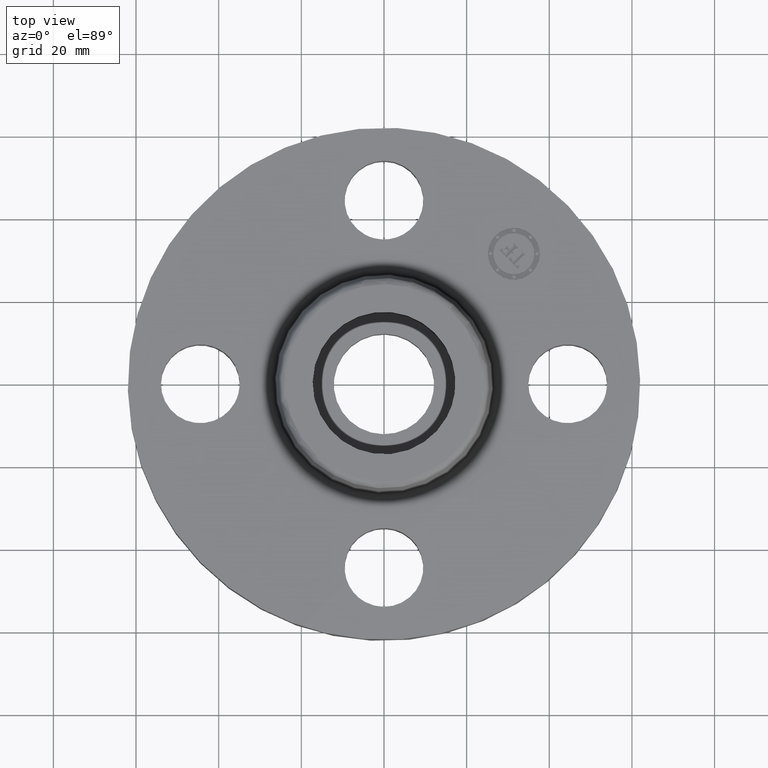
[diagram: clean part render]
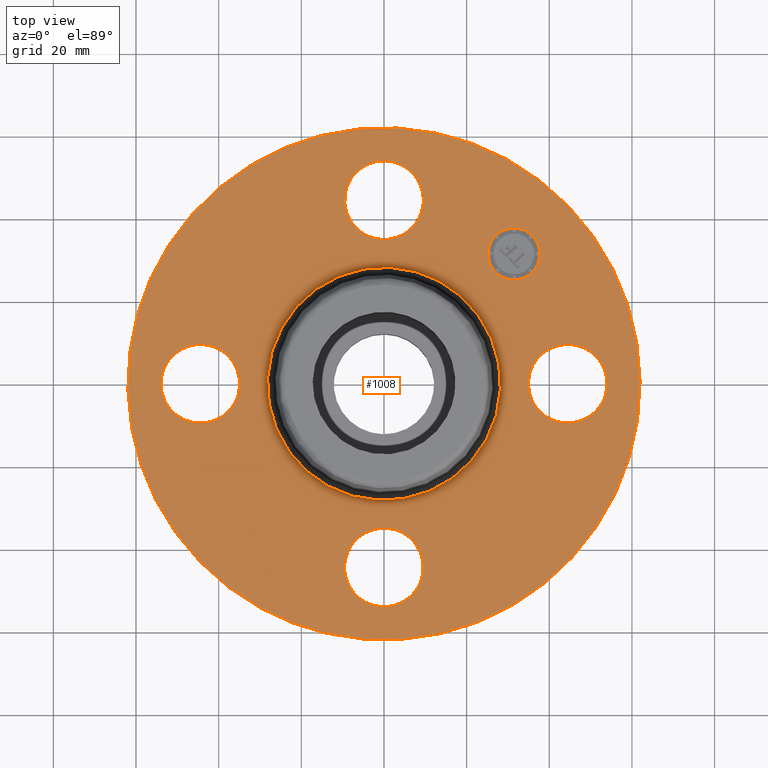
[diagram: same view with one face highlighted and labeled with its STEP entity id]
A machine part, top view. The second image highlights one B-rep face of the part: STEP entity #1008.
In plain terms, the highlighted planar face has unit normal (0, 0, -1).
Its self-contained STEP definition (entity closure, byte-faithful):
#543=AXIS2_PLACEMENT_3D('Circle Axis2P3D',#541,#542,$) ;
#624=AXIS2_PLACEMENT_3D('Circle Axis2P3D',#622,#623,$) ;
#698=AXIS2_PLACEMENT_3D('Circle Axis2P3D',#696,#697,$) ;
#772=AXIS2_PLACEMENT_3D('Circle Axis2P3D',#770,#771,$) ;
#846=AXIS2_PLACEMENT_3D('Circle Axis2P3D',#844,#845,$) ;
#906=AXIS2_PLACEMENT_3D('Circle Axis2P3D',#904,#905,$) ;
#944=AXIS2_PLACEMENT_3D('Circle Axis2P3D',#942,#943,$) ;
#964=AXIS2_PLACEMENT_3D('Plane Axis2P3D',#961,#962,#963) ;
#992=AXIS2_PLACEMENT_3D('Circle Axis2P3D',#990,#991,$) ;
#1001=AXIS2_PLACEMENT_3D('Circle Axis2P3D',#999,#1000,$) ;
#538=CARTESIAN_POINT('Vertex',(-1.1697983142,-2.14130145102,0.620000000018)) ;
#541=CARTESIAN_POINT('Axis2P3D Location',(0.,0.,0.620000000018)) ;
#545=CARTESIAN_POINT('Vertex',(1.1697983142,2.14130145102,0.620000000018)) ;
#573=CARTESIAN_POINT('Control Point',(1.1697983142,2.14130145102,0.620000000018)) ;
#574=CARTESIAN_POINT('Control Point',(1.50615315958,1.95754996152,0.620000000018)) ;
#575=CARTESIAN_POINT('Control Point',(1.80642848437,1.70775535256,0.620000000017)) ;
#576=CARTESIAN_POINT('Control Point',(2.05327575034,1.40131042472,0.620000000016)) ;
#577=CARTESIAN_POINT('Control Point',(2.41351270846,0.708143919932,0.620000000014)) ;
#578=CARTESIAN_POINT('Control Point',(2.48490322143,-0.0697724406241,0.620000000013)) ;
#579=CARTESIAN_POINT('Control Point',(2.44276131057,-0.461009102841,0.620000000012)) ;
#580=CARTESIAN_POINT('Control Point',(2.20734457047,-1.20587783479,0.62000000001)) ;
#581=CARTESIAN_POINT('Control Point',(1.70775535256,-1.80642848437,0.620000000009)) ;
#582=CARTESIAN_POINT('Control Point',(1.40131042472,-2.05327575033,0.620000000008)) ;
#583=CARTESIAN_POINT('Control Point',(0.708143919932,-2.41351270846,0.620000000006)) ;
#584=CARTESIAN_POINT('Control Point',(-0.0697724406238,-2.48490322143,0.620000000004)) ;
#585=CARTESIAN_POINT('Control Point',(-0.461009102841,-2.44276131057,0.620000000004)) ;
#586=CARTESIAN_POINT('Control Point',(-0.833443468817,-2.32505294052,0.620000000003)) ;
#587=CARTESIAN_POINT('Control Point',(-1.1697983142,-2.14130145102,0.620000000002)) ;
#612=CARTESIAN_POINT('Vertex',(2.07909346074,-0.179784576955,0.620000000002)) ;
#619=CARTESIAN_POINT('Vertex',(1.4209065393,0.179784576977,0.619999999987)) ;
#622=CARTESIAN_POINT('Axis2P3D Location',(1.75000000001,0.,0.619999999987)) ;
#647=CARTESIAN_POINT('Control Point',(1.4209065393,0.179784576977,0.620000000002)) ;
#648=CARTESIAN_POINT('Control Point',(1.44914703461,0.231478456903,0.620000000001)) ;
#649=CARTESIAN_POINT('Control Point',(1.48753759951,0.27762732854,0.620000000001)) ;
#650=CARTESIAN_POINT('Control Point',(1.53463466834,0.315564920645,0.62)) ;
#651=CARTESIAN_POINT('Control Point',(1.64116640576,0.370929207243,0.619999999998)) ;
#652=CARTESIAN_POINT('Control Point',(1.76072322347,0.38190110985,0.619999999997)) ;
#653=CARTESIAN_POINT('Control Point',(1.82085180885,0.375424381748,0.619999999996)) ;
#654=CARTESIAN_POINT('Control Point',(1.93532958528,0.339243530298,0.619999999995)) ;
#655=CARTESIAN_POINT('Control Point',(2.02762732855,0.262462400496,0.619999999993)) ;
#656=CARTESIAN_POINT('Control Point',(2.06556492066,0.215365331668,0.619999999992)) ;
#657=CARTESIAN_POINT('Control Point',(2.12092920725,0.108833594252,0.619999999991)) ;
#658=CARTESIAN_POINT('Control Point',(2.13190110986,-0.0107232234562,0.61999999999)) ;
#659=CARTESIAN_POINT('Control Point',(2.12542438176,-0.0708518088378,0.619999999989)) ;
#660=CARTESIAN_POINT('Control Point',(2.10733395603,-0.128090697051,0.619999999988)) ;
#661=CARTESIAN_POINT('Control Point',(2.07909346072,-0.179784576977,0.619999999987)) ;
#686=CARTESIAN_POINT('Vertex',(0.179784576973,-1.42090653933,0.620000000002)) ;
#693=CARTESIAN_POINT('Vertex',(-0.179784576977,-2.07909346072,0.619999999987)) ;
#696=CARTESIAN_POINT('Axis2P3D Location',(-1.72584639625E-016,-1.75000000001,0.619999999987)) ;
#721=CARTESIAN_POINT('Control Point',(-0.179784576977,-2.07909346072,0.620000000002)) ;
#722=CARTESIAN_POINT('Control Point',(-0.231478456903,-2.05085296541,0.620000000001)) ;
#723=CARTESIAN_POINT('Control Point',(-0.27762732854,-2.01246240051,0.620000000001)) ;
#724=CARTESIAN_POINT('Control Point',(-0.315564920645,-1.96536533168,0.62)) ;
#725=CARTESIAN_POINT('Control Point',(-0.370929207243,-1.85883359426,0.619999999998)) ;
#726=CARTESIAN_POINT('Control Point',(-0.38190110985,-1.73927677655,0.619999999997)) ;
#727=CARTESIAN_POINT('Control Point',(-0.375424381748,-1.67914819117,0.619999999996)) ;
#728=CARTESIAN_POINT('Control Point',(-0.339243530298,-1.56467041474,0.619999999995)) ;
#729=CARTESIAN_POINT('Control Point',(-0.262462400496,-1.47237267147,0.619999999993)) ;
#730=CARTESIAN_POINT('Control Point',(-0.215365331668,-1.43443507936,0.619999999992)) ;
#731=CARTESIAN_POINT('Control Point',(-0.108833594252,-1.37907079277,0.619999999991)) ;
#732=CARTESIAN_POINT('Control Point',(0.0107232234562,-1.36809889016,0.61999999999)) ;
#733=CARTESIAN_POINT('Control Point',(0.0708518088378,-1.37457561826,0.619999999989)) ;
#734=CARTESIAN_POINT('Control Point',(0.128090697051,-1.39266604399,0.619999999988)) ;
#735=CARTESIAN_POINT('Control Point',(0.179784576977,-1.4209065393,0.619999999987)) ;
#760=CARTESIAN_POINT('Vertex',(-1.42090653927,-0.179784576955,0.620000000002)) ;
#767=CARTESIAN_POINT('Vertex',(-2.07909346072,0.179784576978,0.619999999987)) ;
#770=CARTESIAN_POINT('Axis2P3D Location',(-1.75000000001,-2.14313189852E-016,0.619999999987)) ;
#795=CARTESIAN_POINT('Control Point',(-2.07909346072,0.179784576978,0.620000000002)) ;
#796=CARTESIAN_POINT('Control Point',(-2.05085296541,0.231478456903,0.620000000001)) ;
#797=CARTESIAN_POINT('Control Point',(-2.01246240051,0.277627328541,0.620000000001)) ;
#798=CARTESIAN_POINT('Control Point',(-1.96536533168,0.315564920646,0.62)) ;
#799=CARTESIAN_POINT('Control Point',(-1.85883359426,0.370929207244,0.619999999998)) ;
#800=CARTESIAN_POINT('Control Point',(-1.73927677655,0.381901109851,0.619999999997)) ;
#801=CARTESIAN_POINT('Control Point',(-1.67914819117,0.375424381749,0.619999999996)) ;
#802=CARTESIAN_POINT('Control Point',(-1.56467041474,0.339243530299,0.619999999995)) ;
#803=CARTESIAN_POINT('Control Point',(-1.47237267147,0.262462400496,0.619999999993)) ;
#804=CARTESIAN_POINT('Control Point',(-1.43443507936,0.215365331668,0.619999999992)) ;
#805=CARTESIAN_POINT('Control Point',(-1.37907079277,0.108833594252,0.619999999991)) ;
#806=CARTESIAN_POINT('Control Point',(-1.36809889016,-0.0107232234563,0.61999999999)) ;
#807=CARTESIAN_POINT('Control Point',(-1.37457561826,-0.070851808838,0.619999999989)) ;
#808=CARTESIAN_POINT('Control Point',(-1.39266604399,-0.128090697052,0.619999999988)) ;
#809=CARTESIAN_POINT('Control Point',(-1.4209065393,-0.179784576977,0.619999999987)) ;
#834=CARTESIAN_POINT('Vertex',(-0.179784576973,1.42090653929,0.620000000002)) ;
#841=CARTESIAN_POINT('Vertex',(0.179784576977,2.07909346072,0.619999999987)) ;
#844=CARTESIAN_POINT('Axis2P3D Location',(-3.21469784777E-016,1.75000000001,0.619999999987)) ;
#869=CARTESIAN_POINT('Control Point',(0.179784576977,2.07909346072,0.620000000002)) ;
#870=CARTESIAN_POINT('Control Point',(0.231478456903,2.05085296541,0.620000000001)) ;
#871=CARTESIAN_POINT('Control Point',(0.27762732854,2.01246240051,0.620000000001)) ;
#872=CARTESIAN_POINT('Control Point',(0.315564920645,1.96536533168,0.62)) ;
#873=CARTESIAN_POINT('Control Point',(0.370929207243,1.85883359426,0.619999999998)) ;
#874=CARTESIAN_POINT('Control Point',(0.38190110985,1.73927677655,0.619999999997)) ;
#875=CARTESIAN_POINT('Control Point',(0.375424381748,1.67914819117,0.619999999996)) ;
#876=CARTESIAN_POINT('Control Point',(0.339243530298,1.56467041474,0.619999999995)) ;
#877=CARTESIAN_POINT('Control Point',(0.262462400496,1.47237267147,0.619999999993)) ;
#878=CARTESIAN_POINT('Control Point',(0.215365331668,1.43443507936,0.619999999992)) ;
#879=CARTESIAN_POINT('Control Point',(0.108833594252,1.37907079277,0.619999999991)) ;
#880=CARTESIAN_POINT('Control Point',(-0.0107232234562,1.36809889016,0.61999999999)) ;
#881=CARTESIAN_POINT('Control Point',(-0.0708518088378,1.37457561826,0.619999999989)) ;
#882=CARTESIAN_POINT('Control Point',(-0.128090697051,1.39266604399,0.619999999988)) ;
#883=CARTESIAN_POINT('Control Point',(-0.179784576977,1.4209065393,0.619999999987)) ;
#904=CARTESIAN_POINT('Axis2P3D Location',(0.,0.,0.620000000003)) ;
#908=CARTESIAN_POINT('Vertex',(0.53232821848,0.974420267848,0.620000000003)) ;
#910=CARTESIAN_POINT('Vertex',(-0.532328218482,-0.974420267852,0.620000000003)) ;
#942=CARTESIAN_POINT('Axis2P3D Location',(0.,0.,0.620000000003)) ;
#961=CARTESIAN_POINT('Axis2P3D Location',(0.,2.44000000001,0.620000000002)) ;
#990=CARTESIAN_POINT('Axis2P3D Location',(1.23743686708,1.23743686702,0.620000000002)) ;
#994=CARTESIAN_POINT('Vertex',(1.06242793876,1.41244579541,0.620000000002)) ;
#996=CARTESIAN_POINT('Vertex',(1.41244579547,1.06242793871,0.620000000002)) ;
#999=CARTESIAN_POINT('Axis2P3D Location',(1.23743686711,1.23743686706,0.620000000002)) ;
#542=DIRECTION('Axis2P3D Direction',(0.,0.,-0.0393700787402)) ;
#623=DIRECTION('Axis2P3D Direction',(0.,-0.,-0.0393700787402)) ;
#697=DIRECTION('Axis2P3D Direction',(0.,0.,-0.0393700787402)) ;
#771=DIRECTION('Axis2P3D Direction',(0.,-0.,-0.0393700787402)) ;
#845=DIRECTION('Axis2P3D Direction',(-0.,0.,-0.0393700787402)) ;
#905=DIRECTION('Axis2P3D Direction',(-0.,0.,-0.0393700787402)) ;
#943=DIRECTION('Axis2P3D Direction',(-0.,0.,-0.0393700787402)) ;
#962=DIRECTION('Axis2P3D Direction',(0.,0.,-0.0393700787402)) ;
#963=DIRECTION('Axis2P3D XDirection',(0.0393700787402,0.,0.)) ;
#991=DIRECTION('Axis2P3D Direction',(0.,0.,-0.0393700787402)) ;
#1000=DIRECTION('Axis2P3D Direction',(0.,0.,-0.0393700787402)) ;
#967=ORIENTED_EDGE('',*,*,#588,.F.) ;
#968=ORIENTED_EDGE('',*,*,#547,.F.) ;
#971=ORIENTED_EDGE('',*,*,#662,.T.) ;
#972=ORIENTED_EDGE('',*,*,#626,.T.) ;
#975=ORIENTED_EDGE('',*,*,#946,.T.) ;
#976=ORIENTED_EDGE('',*,*,#912,.T.) ;
#979=ORIENTED_EDGE('',*,*,#736,.T.) ;
#980=ORIENTED_EDGE('',*,*,#700,.T.) ;
#983=ORIENTED_EDGE('',*,*,#810,.T.) ;
#984=ORIENTED_EDGE('',*,*,#774,.T.) ;
#987=ORIENTED_EDGE('',*,*,#884,.T.) ;
#988=ORIENTED_EDGE('',*,*,#848,.T.) ;
#1005=ORIENTED_EDGE('',*,*,#998,.T.) ;
#1006=ORIENTED_EDGE('',*,*,#1003,.T.) ;
#973=FACE_BOUND('',#970,.T.) ;
#977=FACE_BOUND('',#974,.T.) ;
#981=FACE_BOUND('',#978,.T.) ;
#985=FACE_BOUND('',#982,.T.) ;
#989=FACE_BOUND('',#986,.T.) ;
#1007=FACE_BOUND('',#1004,.T.) ;
#1008=ADVANCED_FACE('PartBody',(#969,#973,#977,#981,#985,#989,#1007),#965,.F.) ;
#572=B_SPLINE_CURVE_WITH_KNOTS('',5,(#573,#574,#575,#576,#577,#578,#579,#580,#581,#582,#583,#584,#585,#586,#587),.UNSPECIFIED.,.F.,.U.,(6,3,3,3,6),(-97.3516731498,-48.6758365749,0.,48.6758365749,97.3516731498),.UNSPECIFIED.) ;
#646=B_SPLINE_CURVE_WITH_KNOTS('',5,(#647,#648,#649,#650,#651,#652,#653,#654,#655,#656,#657,#658,#659,#660,#661),.UNSPECIFIED.,.F.,.U.,(6,3,3,3,6),(-14.9618350128,-7.48091750638,0.,7.48091750638,14.9618350128),.UNSPECIFIED.) ;
#720=B_SPLINE_CURVE_WITH_KNOTS('',5,(#721,#722,#723,#724,#725,#726,#727,#728,#729,#730,#731,#732,#733,#734,#735),.UNSPECIFIED.,.F.,.U.,(6,3,3,3,6),(-14.9618350128,-7.48091750638,0.,7.48091750638,14.9618350128),.UNSPECIFIED.) ;
#794=B_SPLINE_CURVE_WITH_KNOTS('',5,(#795,#796,#797,#798,#799,#800,#801,#802,#803,#804,#805,#806,#807,#808,#809),.UNSPECIFIED.,.F.,.U.,(6,3,3,3,6),(-14.9618350128,-7.4809175064,0.,7.4809175064,14.9618350128),.UNSPECIFIED.) ;
#868=B_SPLINE_CURVE_WITH_KNOTS('',5,(#869,#870,#871,#872,#873,#874,#875,#876,#877,#878,#879,#880,#881,#882,#883),.UNSPECIFIED.,.F.,.U.,(6,3,3,3,6),(-14.9618350128,-7.48091750638,0.,7.48091750638,14.9618350128),.UNSPECIFIED.) ;
#544=CIRCLE('generated circle',#543,2.44000000001) ;
#625=CIRCLE('generated circle',#624,0.375000000001) ;
#699=CIRCLE('generated circle',#698,0.375000000001) ;
#773=CIRCLE('generated circle',#772,0.375000000002) ;
#847=CIRCLE('generated circle',#846,0.375000000001) ;
#907=CIRCLE('generated circle',#906,1.11034597788) ;
#945=CIRCLE('generated circle',#944,1.11034597788) ;
#993=CIRCLE('generated circle',#992,0.247500000012) ;
#1002=CIRCLE('generated circle',#1001,0.247500000012) ;
#547=EDGE_CURVE('',#539,#546,#544,.T.) ;
#588=EDGE_CURVE('',#546,#539,#572,.T.) ;
#626=EDGE_CURVE('',#613,#620,#625,.T.) ;
#662=EDGE_CURVE('',#620,#613,#646,.T.) ;
#700=EDGE_CURVE('',#687,#694,#699,.T.) ;
#736=EDGE_CURVE('',#694,#687,#720,.T.) ;
#774=EDGE_CURVE('',#761,#768,#773,.T.) ;
#810=EDGE_CURVE('',#768,#761,#794,.T.) ;
#848=EDGE_CURVE('',#835,#842,#847,.T.) ;
#884=EDGE_CURVE('',#842,#835,#868,.T.) ;
#912=EDGE_CURVE('',#909,#911,#907,.T.) ;
#946=EDGE_CURVE('',#911,#909,#945,.T.) ;
#998=EDGE_CURVE('',#995,#997,#993,.T.) ;
#1003=EDGE_CURVE('',#997,#995,#1002,.T.) ;
#966=EDGE_LOOP('',(#967,#968)) ;
#970=EDGE_LOOP('',(#971,#972)) ;
#974=EDGE_LOOP('',(#975,#976)) ;
#978=EDGE_LOOP('',(#979,#980)) ;
#982=EDGE_LOOP('',(#983,#984)) ;
#986=EDGE_LOOP('',(#987,#988)) ;
#1004=EDGE_LOOP('',(#1005,#1006)) ;
#969=FACE_OUTER_BOUND('',#966,.T.) ;
#965=PLANE('',#964) ;
#539=VERTEX_POINT('',#538) ;
#546=VERTEX_POINT('',#545) ;
#613=VERTEX_POINT('',#612) ;
#620=VERTEX_POINT('',#619) ;
#687=VERTEX_POINT('',#686) ;
#694=VERTEX_POINT('',#693) ;
#761=VERTEX_POINT('',#760) ;
#768=VERTEX_POINT('',#767) ;
#835=VERTEX_POINT('',#834) ;
#842=VERTEX_POINT('',#841) ;
#909=VERTEX_POINT('',#908) ;
#911=VERTEX_POINT('',#910) ;
#995=VERTEX_POINT('',#994) ;
#997=VERTEX_POINT('',#996) ;